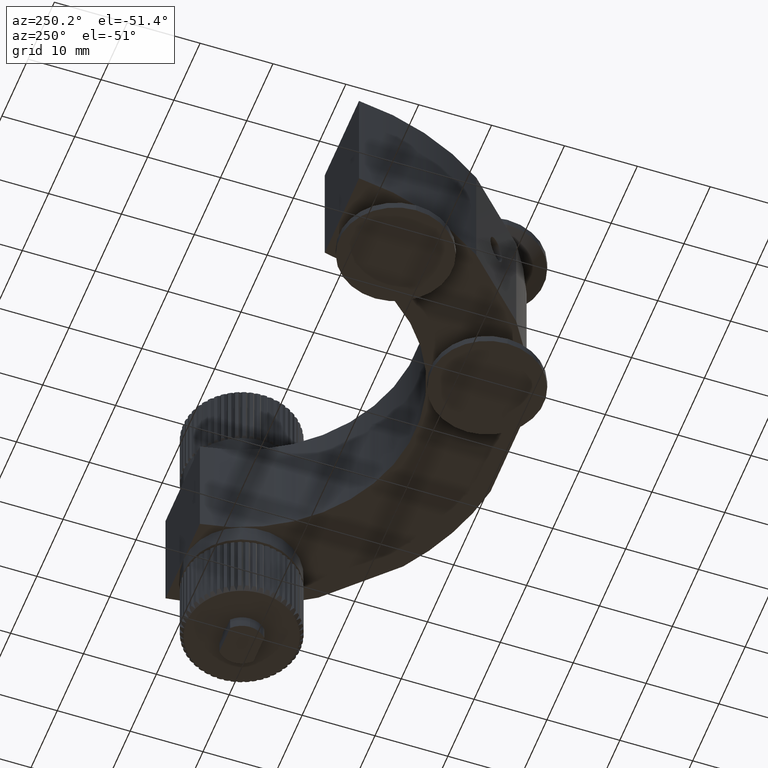
[diagram: clean part render]
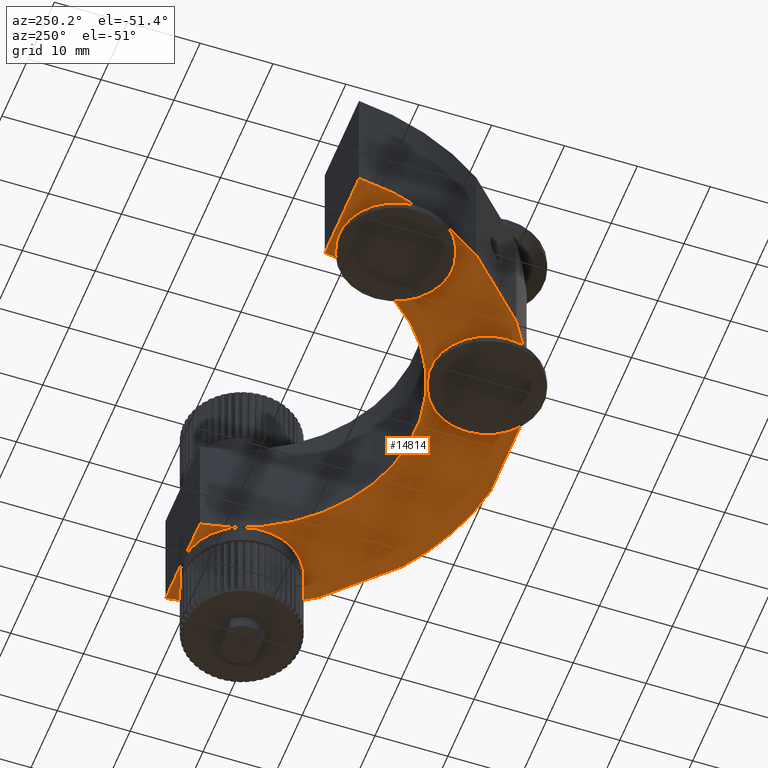
[diagram: same view with one face highlighted and labeled with its STEP entity id]
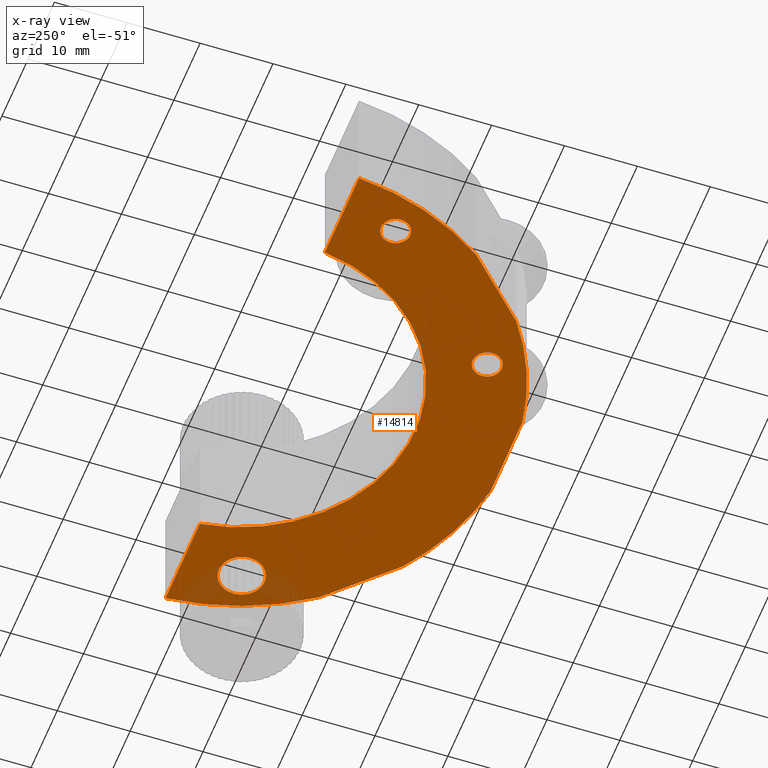
[diagram: x-ray of the same camera — body ghosted, the highlighted face saturated]
A machine part, auxiliary view. The second image highlights one B-rep face of the part: STEP entity #14814.
The next image is the same camera in x-ray: the body ghosted, the highlighted face saturated — about 5% of this face is hidden behind the body in this view.
In plain terms, the highlighted planar face has unit normal (0, 0, 1).
Its self-contained STEP definition (entity closure, byte-faithful):
#6 = LINE ( 'NONE', #9896, #7809 ) ;
#18 = ORIENTED_EDGE ( 'NONE', *, *, #17897, .F. ) ;
#70 = DIRECTION ( 'NONE',  ( 1.000000000000000000, 0.0000000000000000000, 0.0000000000000000000 ) ) ;
#475 = DIRECTION ( 'NONE',  ( 0.0000000000000000000, 0.0000000000000000000, 1.000000000000000000 ) ) ;
#575 = CARTESIAN_POINT ( 'NONE',  ( -3.382564541901944600, -34.60194059008181700, -8.000000000000000000 ) ) ;
#720 = CARTESIAN_POINT ( 'NONE',  ( -25.57698113458547700, -8.520121532718349000, -8.000000000000000000 ) ) ;
#978 = DIRECTION ( 'NONE',  ( 1.000000000000000000, 0.0000000000000000000, 0.0000000000000000000 ) ) ;
#1204 = DIRECTION ( 'NONE',  ( 1.000000000000000000, 0.0000000000000000000, 0.0000000000000000000 ) ) ;
#1330 = ORIENTED_EDGE ( 'NONE', *, *, #8192, .T. ) ;
#1563 = CARTESIAN_POINT ( 'NONE',  ( 2.679613284590009600, 1.898059409918034800, -8.000000000000000000 ) ) ;
#1632 = DIRECTION ( 'NONE',  ( 1.000000000000000000, 0.0000000000000000000, 0.0000000000000000000 ) ) ;
#1643 = EDGE_LOOP ( 'NONE', ( #13204, #1330 ) ) ;
#2389 = LINE ( 'NONE', #6236, #6276 ) ;
#2417 = EDGE_CURVE ( 'NONE', #13688, #3003, #14831, .T. ) ;
#2438 = CIRCLE ( 'NONE', #15194, 3.124999999999996000 ) ;
#2604 = ORIENTED_EDGE ( 'NONE', *, *, #6820, .F. ) ;
#2653 = DIRECTION ( 'NONE',  ( 0.0000000000000000000, 0.0000000000000000000, 1.000000000000000000 ) ) ;
#2830 = ORIENTED_EDGE ( 'NONE', *, *, #7988, .F. ) ;
#2848 = AXIS2_PLACEMENT_3D ( 'NONE', #7104, #16766, #1632 ) ;
#3003 = VERTEX_POINT ( 'NONE', #13140 ) ;
#3089 = CARTESIAN_POINT ( 'NONE',  ( -10.84417109111222500, -27.10378977525479600, -8.000000000000000000 ) ) ;
#3130 = AXIS2_PLACEMENT_3D ( 'NONE', #9282, #4984, #3543 ) ;
#3187 = CARTESIAN_POINT ( 'NONE',  ( 29.60457168722360400, -9.101940590081937900, -8.000000000000000000 ) ) ;
#3313 = EDGE_CURVE ( 'NONE', #8918, #12704, #5709, .T. ) ;
#3543 = DIRECTION ( 'NONE',  ( 1.000000000000000000, 0.0000000000000000000, 0.0000000000000000000 ) ) ;
#3816 = CARTESIAN_POINT ( 'NONE',  ( -3.382564541901944600, -34.60194059008181700, -8.000000000000000000 ) ) ;
#4021 = DIRECTION ( 'NONE',  ( 0.0000000000000000000, 0.0000000000000000000, 1.000000000000000000 ) ) ;
#4171 = DIRECTION ( 'NONE',  ( 0.0000000000000000000, 0.0000000000000000000, 1.000000000000000000 ) ) ;
#4297 = ORIENTED_EDGE ( 'NONE', *, *, #3313, .F. ) ;
#4513 = VERTEX_POINT ( 'NONE', #17801 ) ;
#4663 = AXIS2_PLACEMENT_3D ( 'NONE', #3089, #5691, #15479 ) ;
#4745 = CARTESIAN_POINT ( 'NONE',  ( -27.41639127858922000, -19.62473105352083600, -8.000000000000000000 ) ) ;
#4954 = PLANE ( 'NONE',  #7281 ) ;
#4963 = VERTEX_POINT ( 'NONE', #8393 ) ;
#4984 = DIRECTION ( 'NONE',  ( 0.0000000000000000000, 0.0000000000000000000, 1.000000000000000000 ) ) ;
#5115 = EDGE_CURVE ( 'NONE', #12963, #4513, #14667, .T. ) ;
#5116 = VECTOR ( 'NONE', #6136, 1000.000000000000000 ) ;
#5160 = CARTESIAN_POINT ( 'NONE',  ( -34.19856454458155100, -1.101940590081929900, -8.000000000000000000 ) ) ;
#5691 = DIRECTION ( 'NONE',  ( 0.0000000000000000000, 0.0000000000000000000, 1.000000000000000000 ) ) ;
#5709 = CIRCLE ( 'NONE', #17696, 37.00000000000000700 ) ;
#5785 = VERTEX_POINT ( 'NONE', #720 ) ;
#5794 = EDGE_CURVE ( 'NONE', #10945, #5785, #10193, .T. ) ;
#5835 = CARTESIAN_POINT ( 'NONE',  ( 32.72957168722360400, -9.101940590081937900, -8.000000000000000000 ) ) ;
#5911 = AXIS2_PLACEMENT_3D ( 'NONE', #7047, #12376, #16640 ) ;
#6132 = EDGE_CURVE ( 'NONE', #10680, #16955, #14535, .T. ) ;
#6136 = DIRECTION ( 'NONE',  ( 1.000000000000000000, -5.723103233283588400E-016, 0.0000000000000000000 ) ) ;
#6236 = CARTESIAN_POINT ( 'NONE',  ( 26.49137508417133100, -1.101940590081929900, -8.000000000000000000 ) ) ;
#6276 = VECTOR ( 'NONE', #11817, 1000.000000000000000 ) ;
#6345 = DIRECTION ( 'NONE',  ( 0.7071067811865522400, 0.7071067811865428000, 0.0000000000000000000 ) ) ;
#6402 = CARTESIAN_POINT ( 'NONE',  ( 24.20240374802847700, -28.19794515326142900, -8.000000000000000000 ) ) ;
#6421 = CARTESIAN_POINT ( 'NONE',  ( -27.57698113458547300, -8.520121532718349000, -8.000000000000000000 ) ) ;
#6607 = CIRCLE ( 'NONE', #14437, 24.00000000000000400 ) ;
#6693 = EDGE_LOOP ( 'NONE', ( #6943, #17021 ) ) ;
#6820 = EDGE_CURVE ( 'NONE', #10620, #8918, #6, .T. ) ;
#6836 = FACE_OUTER_BOUND ( 'NONE', #14967, .T. ) ;
#6921 = AXIS2_PLACEMENT_3D ( 'NONE', #6421, #10224, #978 ) ;
#6943 = ORIENTED_EDGE ( 'NONE', *, *, #5794, .T. ) ;
#7047 = CARTESIAN_POINT ( 'NONE',  ( -10.84417109111222500, -27.10378977525479600, -8.000000000000000000 ) ) ;
#7104 = CARTESIAN_POINT ( 'NONE',  ( 2.679613284590009600, 1.898059409918034800, -8.000000000000000000 ) ) ;
#7281 = AXIS2_PLACEMENT_3D ( 'NONE', #9564, #10712, #16560 ) ;
#7570 = VERTEX_POINT ( 'NONE', #16491 ) ;
#7675 = CARTESIAN_POINT ( 'NONE',  ( -29.57698113458547300, -8.520121532718349000, -8.000000000000000000 ) ) ;
#7809 = VECTOR ( 'NONE', #15375, 1000.000000000000000 ) ;
#7920 = FACE_BOUND ( 'NONE', #6693, .T. ) ;
#7988 = EDGE_CURVE ( 'NONE', #7570, #12963, #16889, .T. ) ;
#8048 = DIRECTION ( 'NONE',  ( 1.000000000000000000, 0.0000000000000000000, 0.0000000000000000000 ) ) ;
#8192 = EDGE_CURVE ( 'NONE', #13833, #4963, #13817, .T. ) ;
#8299 = CARTESIAN_POINT ( 'NONE',  ( -27.57698113458547300, -8.520121532718349000, -8.000000000000000000 ) ) ;
#8393 = CARTESIAN_POINT ( 'NONE',  ( -12.84417109111222500, -27.10378977525479600, -8.000000000000000000 ) ) ;
#8472 = EDGE_LOOP ( 'NONE', ( #13437, #13104 ) ) ;
#8507 = EDGE_CURVE ( 'NONE', #8683, #10680, #12302, .T. ) ;
#8683 = VERTEX_POINT ( 'NONE', #13693 ) ;
#8802 = ORIENTED_EDGE ( 'NONE', *, *, #10981, .F. ) ;
#8831 = ORIENTED_EDGE ( 'NONE', *, *, #5115, .F. ) ;
#8918 = VERTEX_POINT ( 'NONE', #5160 ) ;
#9282 = CARTESIAN_POINT ( 'NONE',  ( 2.679613284590009600, 1.898059409918034800, -8.000000000000000000 ) ) ;
#9564 = CARTESIAN_POINT ( 'NONE',  ( 2.679613284590009600, 1.898059409918034800, -8.000000000000000000 ) ) ;
#9625 = CARTESIAN_POINT ( 'NONE',  ( -21.13214851499131400, -1.101940590081921200, -8.000000000000000000 ) ) ;
#9683 = AXIS2_PLACEMENT_3D ( 'NONE', #1563, #4171, #70 ) ;
#9896 = CARTESIAN_POINT ( 'NONE',  ( -34.19856454458153600, -1.101940590081945700, -8.000000000000000000 ) ) ;
#10193 = CIRCLE ( 'NONE', #6921, 1.999999999999998200 ) ;
#10224 = DIRECTION ( 'NONE',  ( 0.0000000000000000000, 0.0000000000000000000, 1.000000000000000000 ) ) ;
#10499 = EDGE_CURVE ( 'NONE', #5785, #10945, #17716, .T. ) ;
#10620 = VERTEX_POINT ( 'NONE', #9625 ) ;
#10680 = VERTEX_POINT ( 'NONE', #11665 ) ;
#10712 = DIRECTION ( 'NONE',  ( 0.0000000000000000000, 0.0000000000000000000, 1.000000000000000000 ) ) ;
#10918 = CARTESIAN_POINT ( 'NONE',  ( 39.55779111376160300, -1.101940590081937000, -8.000000000000000000 ) ) ;
#10935 = CARTESIAN_POINT ( 'NONE',  ( 2.679613284590009600, 1.898059409918034800, -8.000000000000000000 ) ) ;
#10945 = VERTEX_POINT ( 'NONE', #7675 ) ;
#10981 = EDGE_CURVE ( 'NONE', #15798, #10620, #6607, .T. ) ;
#11276 = ORIENTED_EDGE ( 'NONE', *, *, #6132, .F. ) ;
#11665 = CARTESIAN_POINT ( 'NONE',  ( 32.77561784776956700, -19.62473105352044900, -8.000000000000000000 ) ) ;
#11817 = DIRECTION ( 'NONE',  ( -1.000000000000000000, 5.310479850169606000E-016, -0.0000000000000000000 ) ) ;
#11846 = LINE ( 'NONE', #17086, #13338 ) ;
#11940 = CARTESIAN_POINT ( 'NONE',  ( 26.49137508417133100, -1.101940590081930300, -8.000000000000000000 ) ) ;
#12077 = EDGE_CURVE ( 'NONE', #4963, #13833, #15942, .T. ) ;
#12263 = CARTESIAN_POINT ( 'NONE',  ( 2.679613284590009600, 1.898059409918034800, -8.000000000000000000 ) ) ;
#12302 = LINE ( 'NONE', #6402, #17537 ) ;
#12376 = DIRECTION ( 'NONE',  ( 0.0000000000000000000, 0.0000000000000000000, 1.000000000000000000 ) ) ;
#12438 = ORIENTED_EDGE ( 'NONE', *, *, #13438, .F. ) ;
#12447 = FACE_BOUND ( 'NONE', #8472, .T. ) ;
#12704 = VERTEX_POINT ( 'NONE', #4745 ) ;
#12963 = VERTEX_POINT ( 'NONE', #3816 ) ;
#13104 = ORIENTED_EDGE ( 'NONE', *, *, #16143, .T. ) ;
#13140 = CARTESIAN_POINT ( 'NONE',  ( 35.85457168722359700, -9.101940590081937900, -8.000000000000000000 ) ) ;
#13156 = DIRECTION ( 'NONE',  ( 0.0000000000000000000, 0.0000000000000000000, 1.000000000000000000 ) ) ;
#13187 = ORIENTED_EDGE ( 'NONE', *, *, #13643, .F. ) ;
#13204 = ORIENTED_EDGE ( 'NONE', *, *, #12077, .T. ) ;
#13338 = VECTOR ( 'NONE', #15574, 1000.000000000000000 ) ;
#13437 = ORIENTED_EDGE ( 'NONE', *, *, #2417, .T. ) ;
#13438 = EDGE_CURVE ( 'NONE', #4513, #8683, #15227, .T. ) ;
#13473 = DIRECTION ( 'NONE',  ( -0.0000000000000000000, -0.0000000000000000000, -1.000000000000000000 ) ) ;
#13643 = EDGE_CURVE ( 'NONE', #12704, #7570, #11846, .T. ) ;
#13688 = VERTEX_POINT ( 'NONE', #3187 ) ;
#13693 = CARTESIAN_POINT ( 'NONE',  ( 24.20240374802847700, -28.19794515326142900, -8.000000000000000000 ) ) ;
#13738 = DIRECTION ( 'NONE',  ( 1.000000000000000000, 0.0000000000000000000, 0.0000000000000000000 ) ) ;
#13817 = CIRCLE ( 'NONE', #5911, 2.000000000000000000 ) ;
#13833 = VERTEX_POINT ( 'NONE', #16371 ) ;
#14061 = ORIENTED_EDGE ( 'NONE', *, *, #8507, .F. ) ;
#14437 = AXIS2_PLACEMENT_3D ( 'NONE', #10935, #13473, #8048 ) ;
#14535 = CIRCLE ( 'NONE', #2848, 37.00000000000005000 ) ;
#14667 = LINE ( 'NONE', #575, #5116 ) ;
#14814 = ADVANCED_FACE ( 'NONE', ( #7920, #6836, #17927, #12447 ), #4954, .F. ) ;
#14831 = CIRCLE ( 'NONE', #15580, 3.124999999999996000 ) ;
#14967 = EDGE_LOOP ( 'NONE', ( #2830, #13187, #4297, #2604, #8802, #18, #11276, #14061, #12438, #8831 ) ) ;
#15194 = AXIS2_PLACEMENT_3D ( 'NONE', #5835, #475, #15757 ) ;
#15227 = CIRCLE ( 'NONE', #9683, 36.99999999999997900 ) ;
#15375 = DIRECTION ( 'NONE',  ( -1.000000000000000000, -1.858667947559369100E-015, -0.0000000000000000000 ) ) ;
#15479 = DIRECTION ( 'NONE',  ( 1.000000000000000000, 0.0000000000000000000, 0.0000000000000000000 ) ) ;
#15574 = DIRECTION ( 'NONE',  ( 0.7071067811865462400, -0.7071067811865489100, 0.0000000000000000000 ) ) ;
#15580 = AXIS2_PLACEMENT_3D ( 'NONE', #17255, #13156, #15980 ) ;
#15757 = DIRECTION ( 'NONE',  ( 1.000000000000000000, 0.0000000000000000000, 0.0000000000000000000 ) ) ;
#15798 = VERTEX_POINT ( 'NONE', #11940 ) ;
#15942 = CIRCLE ( 'NONE', #4663, 2.000000000000000000 ) ;
#15980 = DIRECTION ( 'NONE',  ( 1.000000000000000000, 0.0000000000000000000, 0.0000000000000000000 ) ) ;
#16143 = EDGE_CURVE ( 'NONE', #3003, #13688, #2438, .T. ) ;
#16371 = CARTESIAN_POINT ( 'NONE',  ( -8.844171091112224700, -27.10378977525479600, -8.000000000000000000 ) ) ;
#16491 = CARTESIAN_POINT ( 'NONE',  ( -18.84317717884897900, -28.19794515326110600, -8.000000000000000000 ) ) ;
#16560 = DIRECTION ( 'NONE',  ( 1.000000000000000000, 0.0000000000000000000, -0.0000000000000000000 ) ) ;
#16640 = DIRECTION ( 'NONE',  ( 1.000000000000000000, 0.0000000000000000000, 0.0000000000000000000 ) ) ;
#16766 = DIRECTION ( 'NONE',  ( 0.0000000000000000000, 0.0000000000000000000, 1.000000000000000000 ) ) ;
#16889 = CIRCLE ( 'NONE', #3130, 37.00000000000000000 ) ;
#16955 = VERTEX_POINT ( 'NONE', #10918 ) ;
#17021 = ORIENTED_EDGE ( 'NONE', *, *, #10499, .T. ) ;
#17086 = CARTESIAN_POINT ( 'NONE',  ( -27.41639127858922000, -19.62473105352083600, -8.000000000000000000 ) ) ;
#17255 = CARTESIAN_POINT ( 'NONE',  ( 32.72957168722360400, -9.101940590081937900, -8.000000000000000000 ) ) ;
#17367 = AXIS2_PLACEMENT_3D ( 'NONE', #8299, #2653, #13738 ) ;
#17537 = VECTOR ( 'NONE', #6345, 1000.000000000000000 ) ;
#17696 = AXIS2_PLACEMENT_3D ( 'NONE', #12263, #4021, #1204 ) ;
#17716 = CIRCLE ( 'NONE', #17367, 1.999999999999998200 ) ;
#17801 = CARTESIAN_POINT ( 'NONE',  ( 8.741791111081948200, -34.60194059008180300, -8.000000000000000000 ) ) ;
#17897 = EDGE_CURVE ( 'NONE', #16955, #15798, #2389, .T. ) ;
#17927 = FACE_BOUND ( 'NONE', #1643, .T. ) ;